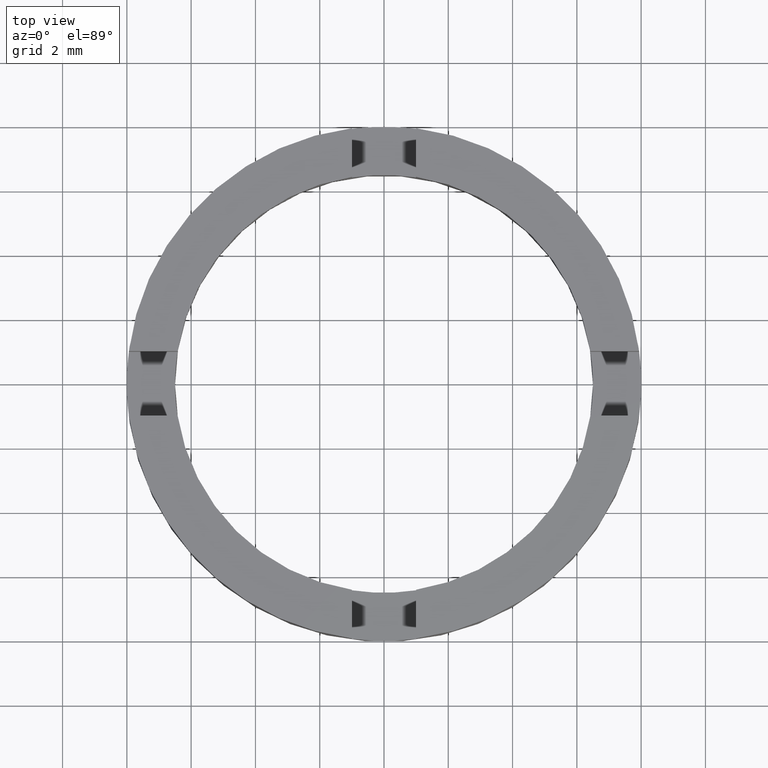
[diagram: clean part render]
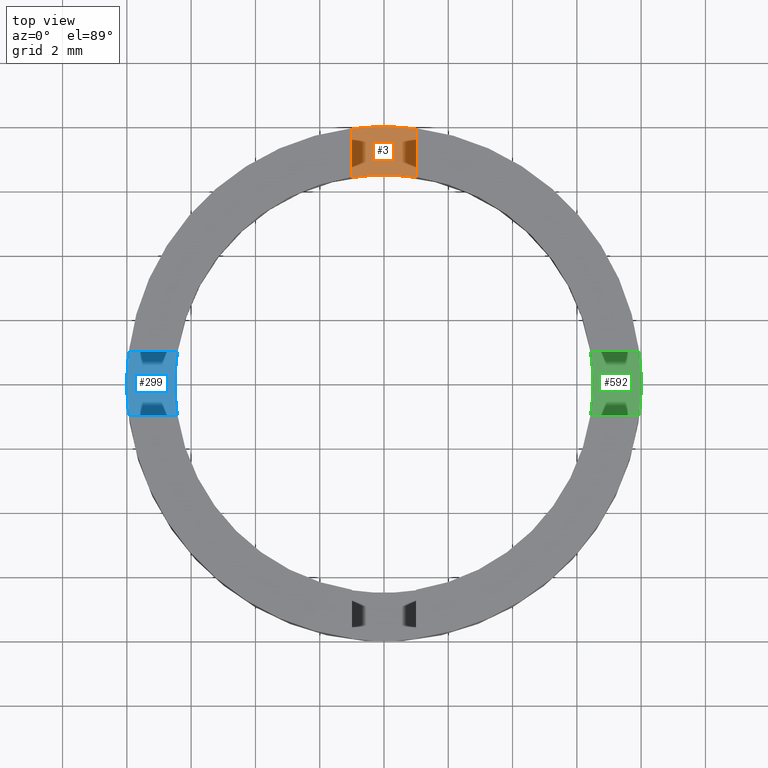
[diagram: same view with three faces highlighted in distinct colors, each labeled with its STEP entity id]
A machine part, top view with three faces highlighted in distinct colors.
Their STEP definitions:

[orange] entity #3 — the highlighted planar face has unit normal (-0, 0, 1).
#3 = ADVANCED_FACE ( 'NONE', ( #358 ), #367, .T. ) ;
#6 = EDGE_CURVE ( 'NONE', #628, #634, #374, .T. ) ;
#67 = AXIS2_PLACEMENT_3D ( 'NONE', #76, #286, #333 ) ;
#70 = EDGE_CURVE ( 'NONE', #628, #726, #643, .T. ) ;
#76 = CARTESIAN_POINT ( 'NONE',  ( 0.000000000000000000, 0.000000000000000000, 1.500000000000000000 ) ) ;
#138 = LINE ( 'NONE', #277, #415 ) ;
#191 = EDGE_CURVE ( 'NONE', #726, #477, #138, .T. ) ;
#197 = DIRECTION ( 'NONE',  ( -0.000000000000000000, 0.000000000000000000, 1.000000000000000000 ) ) ;
#212 = CARTESIAN_POINT ( 'NONE',  ( 0.000000000000000000, 0.000000000000000000, 1.500000000000000000 ) ) ;
#233 = DIRECTION ( 'NONE',  ( -1.355252715606880543E-17, 1.000000000000000000, 0.000000000000000000 ) ) ;
#244 = ORIENTED_EDGE ( 'NONE', *, *, #70, .T. ) ;
#261 = CARTESIAN_POINT ( 'NONE',  ( -0.9999999999999986677, 7.937253933193772149, 1.500000000000000000 ) ) ;
#266 = CARTESIAN_POINT ( 'NONE',  ( 0.000000000000000000, 0.000000000000000000, 1.500000000000000000 ) ) ;
#268 = DIRECTION ( 'NONE',  ( 1.000000000000000000, 0.000000000000000000, 0.000000000000000000 ) ) ;
#277 = CARTESIAN_POINT ( 'NONE',  ( 1.000000000000001332, 1.355252715606882391E-17, 1.500000000000000000 ) ) ;
#286 = DIRECTION ( 'NONE',  ( 0.000000000000000000, -0.000000000000000000, -1.000000000000000000 ) ) ;
#318 = CARTESIAN_POINT ( 'NONE',  ( -0.9999999999999986677, 0.000000000000000000, 1.500000000000000000 ) ) ;
#333 = DIRECTION ( 'NONE',  ( 1.000000000000000000, 0.000000000000000000, 0.000000000000000000 ) ) ;
#336 = AXIS2_PLACEMENT_3D ( 'NONE', #266, #197, #357 ) ;
#346 = ORIENTED_EDGE ( 'NONE', *, *, #661, .T. ) ;
#352 = EDGE_LOOP ( 'NONE', ( #353, #244, #775, #346 ) ) ;
#353 = ORIENTED_EDGE ( 'NONE', *, *, #6, .F. ) ;
#357 = DIRECTION ( 'NONE',  ( 1.000000000000000000, 0.000000000000000000, 0.000000000000000000 ) ) ;
#358 = FACE_OUTER_BOUND ( 'NONE', #352, .T. ) ;
#367 = PLANE ( 'NONE',  #336 ) ;
#374 = LINE ( 'NONE', #318, #633 ) ;
#415 = VECTOR ( 'NONE', #233, 1000.000000000000000 ) ;
#477 = VERTEX_POINT ( 'NONE', #659 ) ;
#515 = AXIS2_PLACEMENT_3D ( 'NONE', #212, #613, #268 ) ;
#516 = DIRECTION ( 'NONE',  ( 0.000000000000000000, 1.000000000000000000, -0.000000000000000000 ) ) ;
#567 = CARTESIAN_POINT ( 'NONE',  ( -0.9999999999999986677, 6.422616289332565565, 1.500000000000000000 ) ) ;
#613 = DIRECTION ( 'NONE',  ( -0.000000000000000000, 0.000000000000000000, 1.000000000000000000 ) ) ;
#628 = VERTEX_POINT ( 'NONE', #567 ) ;
#633 = VECTOR ( 'NONE', #516, 1000.000000000000000 ) ;
#634 = VERTEX_POINT ( 'NONE', #261 ) ;
#643 = CIRCLE ( 'NONE', #67, 6.500000000000000888 ) ;
#659 = CARTESIAN_POINT ( 'NONE',  ( 1.000000000000001332, 7.937253933193772149, 1.500000000000000000 ) ) ;
#661 = EDGE_CURVE ( 'NONE', #477, #634, #700, .T. ) ;
#700 = CIRCLE ( 'NONE', #515, 8.000000000000000000 ) ;
#726 = VERTEX_POINT ( 'NONE', #759 ) ;
#759 = CARTESIAN_POINT ( 'NONE',  ( 1.000000000000001332, 6.422616289332564676, 1.500000000000000000 ) ) ;
#775 = ORIENTED_EDGE ( 'NONE', *, *, #191, .T. ) ;

[blue] entity #299 — the highlighted planar face has unit normal (-0, 0, 1).
#45 = AXIS2_PLACEMENT_3D ( 'NONE', #712, #583, #284 ) ;
#63 = AXIS2_PLACEMENT_3D ( 'NONE', #401, #82, #652 ) ;
#68 = CARTESIAN_POINT ( 'NONE',  ( 0.000000000000000000, 0.000000000000000000, 1.500000000000000000 ) ) ;
#82 = DIRECTION ( 'NONE',  ( -0.000000000000000000, 0.000000000000000000, 1.000000000000000000 ) ) ;
#128 = FACE_OUTER_BOUND ( 'NONE', #215, .T. ) ;
#142 = CIRCLE ( 'NONE', #63, 8.000000000000000000 ) ;
#178 = LINE ( 'NONE', #692, #443 ) ;
#198 = DIRECTION ( 'NONE',  ( 1.000000000000000000, -3.740497495074990297E-15, 0.000000000000000000 ) ) ;
#215 = EDGE_LOOP ( 'NONE', ( #767, #753, #770, #518, #522, #754 ) ) ;
#217 = VERTEX_POINT ( 'NONE', #459 ) ;
#237 = CARTESIAN_POINT ( 'NONE',  ( -8.000000000000000000, 0.000000000000000000, 1.500000000000000000 ) ) ;
#267 = CARTESIAN_POINT ( 'NONE',  ( 3.740497495074986353E-15, 0.9999999999999988898, 1.500000000000000000 ) ) ;
#284 = DIRECTION ( 'NONE',  ( 1.000000000000000000, 0.000000000000000000, 0.000000000000000000 ) ) ;
#288 = VERTEX_POINT ( 'NONE', #597 ) ;
#296 = DIRECTION ( 'NONE',  ( 1.000000000000000000, 8.881784197001250746E-15, 0.000000000000000000 ) ) ;
#299 = ADVANCED_FACE ( 'NONE', ( #128 ), #307, .T. ) ;
#307 = PLANE ( 'NONE',  #757 ) ;
#324 = DIRECTION ( 'NONE',  ( 1.000000000000000000, 0.000000000000000000, 0.000000000000000000 ) ) ;
#332 = DIRECTION ( 'NONE',  ( 0.000000000000000000, -0.000000000000000000, -1.000000000000000000 ) ) ;
#337 = EDGE_CURVE ( 'NONE', #355, #363, #660, .T. ) ;
#338 = CARTESIAN_POINT ( 'NONE',  ( 0.000000000000000000, 0.000000000000000000, 1.500000000000000000 ) ) ;
#340 = DIRECTION ( 'NONE',  ( -0.000000000000000000, 0.000000000000000000, 1.000000000000000000 ) ) ;
#355 = VERTEX_POINT ( 'NONE', #409 ) ;
#359 = CARTESIAN_POINT ( 'NONE',  ( -6.422616289332562012, 1.000000000000023093, 1.500000000000000000 ) ) ;
#362 = VERTEX_POINT ( 'NONE', #237 ) ;
#363 = VERTEX_POINT ( 'NONE', #539 ) ;
#401 = CARTESIAN_POINT ( 'NONE',  ( 0.000000000000000000, 0.000000000000000000, 1.500000000000000000 ) ) ;
#405 = EDGE_CURVE ( 'NONE', #362, #288, #142, .T. ) ;
#409 = CARTESIAN_POINT ( 'NONE',  ( -6.422616289332568229, -0.9999999999999772404, 1.500000000000000000 ) ) ;
#416 = AXIS2_PLACEMENT_3D ( 'NONE', #338, #332, #296 ) ;
#423 = CARTESIAN_POINT ( 'NONE',  ( 0.000000000000000000, 0.000000000000000000, 1.500000000000000000 ) ) ;
#426 = LINE ( 'NONE', #267, #435 ) ;
#433 = EDGE_CURVE ( 'NONE', #363, #783, #654, .T. ) ;
#435 = VECTOR ( 'NONE', #198, 1000.000000000000000 ) ;
#443 = VECTOR ( 'NONE', #611, 1000.000000000000000 ) ;
#459 = CARTESIAN_POINT ( 'NONE',  ( -7.937253933193768596, 1.000000000000028644, 1.500000000000000000 ) ) ;
#470 = CIRCLE ( 'NONE', #558, 8.000000000000000000 ) ;
#518 = ORIENTED_EDGE ( 'NONE', *, *, #758, .T. ) ;
#522 = ORIENTED_EDGE ( 'NONE', *, *, #337, .T. ) ;
#523 = DIRECTION ( 'NONE',  ( -0.000000000000000000, 0.000000000000000000, 1.000000000000000000 ) ) ;
#539 = CARTESIAN_POINT ( 'NONE',  ( -6.500000000000000888, 0.000000000000000000, 1.500000000000000000 ) ) ;
#558 = AXIS2_PLACEMENT_3D ( 'NONE', #68, #523, #324 ) ;
#575 = EDGE_CURVE ( 'NONE', #217, #783, #426, .T. ) ;
#583 = DIRECTION ( 'NONE',  ( 0.000000000000000000, -0.000000000000000000, -1.000000000000000000 ) ) ;
#597 = CARTESIAN_POINT ( 'NONE',  ( -7.937253933193775701, -0.9999999999999715783, 1.500000000000000000 ) ) ;
#609 = EDGE_CURVE ( 'NONE', #217, #362, #470, .T. ) ;
#611 = DIRECTION ( 'NONE',  ( 1.000000000000000000, -3.726944967918921492E-15, 0.000000000000000000 ) ) ;
#652 = DIRECTION ( 'NONE',  ( 1.000000000000000000, 0.000000000000000000, 0.000000000000000000 ) ) ;
#654 = CIRCLE ( 'NONE', #45, 6.500000000000000888 ) ;
#660 = CIRCLE ( 'NONE', #416, 6.500000000000000888 ) ;
#692 = CARTESIAN_POINT ( 'NONE',  ( -3.726944967918925436E-15, -1.000000000000001110, 1.500000000000000000 ) ) ;
#712 = CARTESIAN_POINT ( 'NONE',  ( 0.000000000000000000, 0.000000000000000000, 1.500000000000000000 ) ) ;
#736 = DIRECTION ( 'NONE',  ( 1.000000000000000000, 0.000000000000000000, 0.000000000000000000 ) ) ;
#753 = ORIENTED_EDGE ( 'NONE', *, *, #609, .T. ) ;
#754 = ORIENTED_EDGE ( 'NONE', *, *, #433, .T. ) ;
#757 = AXIS2_PLACEMENT_3D ( 'NONE', #423, #340, #736 ) ;
#758 = EDGE_CURVE ( 'NONE', #288, #355, #178, .T. ) ;
#767 = ORIENTED_EDGE ( 'NONE', *, *, #575, .F. ) ;
#770 = ORIENTED_EDGE ( 'NONE', *, *, #405, .T. ) ;
#783 = VERTEX_POINT ( 'NONE', #359 ) ;

[green] entity #592 — the highlighted planar face has unit normal (-0, 0, 1).
#47 = DIRECTION ( 'NONE',  ( -0.000000000000000000, 0.000000000000000000, 1.000000000000000000 ) ) ;
#49 = CARTESIAN_POINT ( 'NONE',  ( 0.000000000000000000, 0.000000000000000000, 1.500000000000000000 ) ) ;
#71 = DIRECTION ( 'NONE',  ( -0.000000000000000000, 0.000000000000000000, 1.000000000000000000 ) ) ;
#80 = AXIS2_PLACEMENT_3D ( 'NONE', #49, #47, #591 ) ;
#98 = VERTEX_POINT ( 'NONE', #581 ) ;
#105 = ORIENTED_EDGE ( 'NONE', *, *, #403, .T. ) ;
#133 = CARTESIAN_POINT ( 'NONE',  ( 8.000000000000000000, 9.797174393178825657E-16, 1.500000000000000000 ) ) ;
#135 = CIRCLE ( 'NONE', #80, 8.000000000000000000 ) ;
#149 = CIRCLE ( 'NONE', #519, 8.000000000000000000 ) ;
#160 = CIRCLE ( 'NONE', #321, 6.500000000000000888 ) ;
#165 = DIRECTION ( 'NONE',  ( -0.000000000000000000, 0.000000000000000000, 1.000000000000000000 ) ) ;
#181 = CARTESIAN_POINT ( 'NONE',  ( 6.422616289332569117, 0.9999999999999749090, 1.500000000000000000 ) ) ;
#213 = ORIENTED_EDGE ( 'NONE', *, *, #334, .T. ) ;
#221 = DIRECTION ( 'NONE',  ( 1.000000000000000000, 0.000000000000000000, 0.000000000000000000 ) ) ;
#223 = ORIENTED_EDGE ( 'NONE', *, *, #272, .F. ) ;
#247 = EDGE_LOOP ( 'NONE', ( #223, #491, #256, #213, #105, #354 ) ) ;
#256 = ORIENTED_EDGE ( 'NONE', *, *, #587, .T. ) ;
#264 = CARTESIAN_POINT ( 'NONE',  ( 7.937253933193775701, 0.9999999999999692468, 1.500000000000000000 ) ) ;
#270 = CARTESIAN_POINT ( 'NONE',  ( 0.000000000000000000, 0.000000000000000000, 1.500000000000000000 ) ) ;
#272 = EDGE_CURVE ( 'NONE', #511, #771, #407, .T. ) ;
#273 = AXIS2_PLACEMENT_3D ( 'NONE', #451, #71, #221 ) ;
#291 = DIRECTION ( 'NONE',  ( 1.000000000000000000, 0.000000000000000000, 0.000000000000000000 ) ) ;
#308 = FACE_OUTER_BOUND ( 'NONE', #247, .T. ) ;
#315 = AXIS2_PLACEMENT_3D ( 'NONE', #605, #517, #691 ) ;
#321 = AXIS2_PLACEMENT_3D ( 'NONE', #270, #368, #570 ) ;
#334 = EDGE_CURVE ( 'NONE', #765, #782, #665, .T. ) ;
#354 = ORIENTED_EDGE ( 'NONE', *, *, #460, .T. ) ;
#368 = DIRECTION ( 'NONE',  ( 0.000000000000000000, -0.000000000000000000, -1.000000000000000000 ) ) ;
#395 = CARTESIAN_POINT ( 'NONE',  ( -3.726944967918925436E-15, -1.000000000000001110, 1.500000000000000000 ) ) ;
#400 = VECTOR ( 'NONE', #475, 1000.000000000000000 ) ;
#403 = EDGE_CURVE ( 'NONE', #782, #642, #135, .T. ) ;
#407 = LINE ( 'NONE', #697, #666 ) ;
#417 = CARTESIAN_POINT ( 'NONE',  ( 0.000000000000000000, 0.000000000000000000, 1.500000000000000000 ) ) ;
#440 = CARTESIAN_POINT ( 'NONE',  ( 7.937253933193768596, -1.000000000000030642, 1.500000000000000000 ) ) ;
#451 = CARTESIAN_POINT ( 'NONE',  ( 0.000000000000000000, 0.000000000000000000, 1.500000000000000000 ) ) ;
#460 = EDGE_CURVE ( 'NONE', #642, #771, #149, .T. ) ;
#475 = DIRECTION ( 'NONE',  ( 1.000000000000000000, -3.726944967918921492E-15, 0.000000000000000000 ) ) ;
#491 = ORIENTED_EDGE ( 'NONE', *, *, #568, .T. ) ;
#511 = VERTEX_POINT ( 'NONE', #181 ) ;
#517 = DIRECTION ( 'NONE',  ( 0.000000000000000000, -0.000000000000000000, -1.000000000000000000 ) ) ;
#519 = AXIS2_PLACEMENT_3D ( 'NONE', #417, #165, #291 ) ;
#568 = EDGE_CURVE ( 'NONE', #511, #98, #160, .T. ) ;
#570 = DIRECTION ( 'NONE',  ( 1.000000000000000000, -2.042810365310288034E-14, 0.000000000000000000 ) ) ;
#573 = CARTESIAN_POINT ( 'NONE',  ( 6.422616289332561124, -1.000000000000024869, 1.500000000000000000 ) ) ;
#581 = CARTESIAN_POINT ( 'NONE',  ( 6.500000000000000888, 7.960204194457796463E-16, 1.500000000000000000 ) ) ;
#587 = EDGE_CURVE ( 'NONE', #98, #765, #693, .T. ) ;
#591 = DIRECTION ( 'NONE',  ( 1.000000000000000000, 0.000000000000000000, 0.000000000000000000 ) ) ;
#592 = ADVANCED_FACE ( 'NONE', ( #308 ), #760, .T. ) ;
#605 = CARTESIAN_POINT ( 'NONE',  ( 0.000000000000000000, 0.000000000000000000, 1.500000000000000000 ) ) ;
#642 = VERTEX_POINT ( 'NONE', #133 ) ;
#665 = LINE ( 'NONE', #395, #400 ) ;
#666 = VECTOR ( 'NONE', #763, 1000.000000000000000 ) ;
#691 = DIRECTION ( 'NONE',  ( 1.000000000000000000, 0.000000000000000000, 0.000000000000000000 ) ) ;
#693 = CIRCLE ( 'NONE', #315, 6.500000000000000888 ) ;
#697 = CARTESIAN_POINT ( 'NONE',  ( 3.740497495074986353E-15, 0.9999999999999988898, 1.500000000000000000 ) ) ;
#760 = PLANE ( 'NONE',  #273 ) ;
#763 = DIRECTION ( 'NONE',  ( 1.000000000000000000, -3.740497495074990297E-15, 0.000000000000000000 ) ) ;
#765 = VERTEX_POINT ( 'NONE', #573 ) ;
#771 = VERTEX_POINT ( 'NONE', #264 ) ;
#782 = VERTEX_POINT ( 'NONE', #440 ) ;